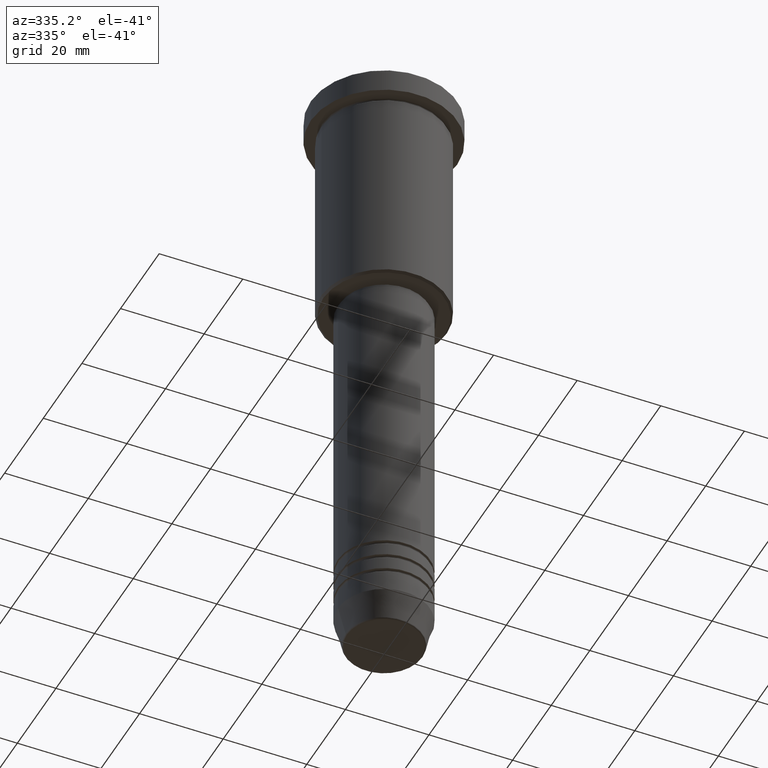
[diagram: clean part render]
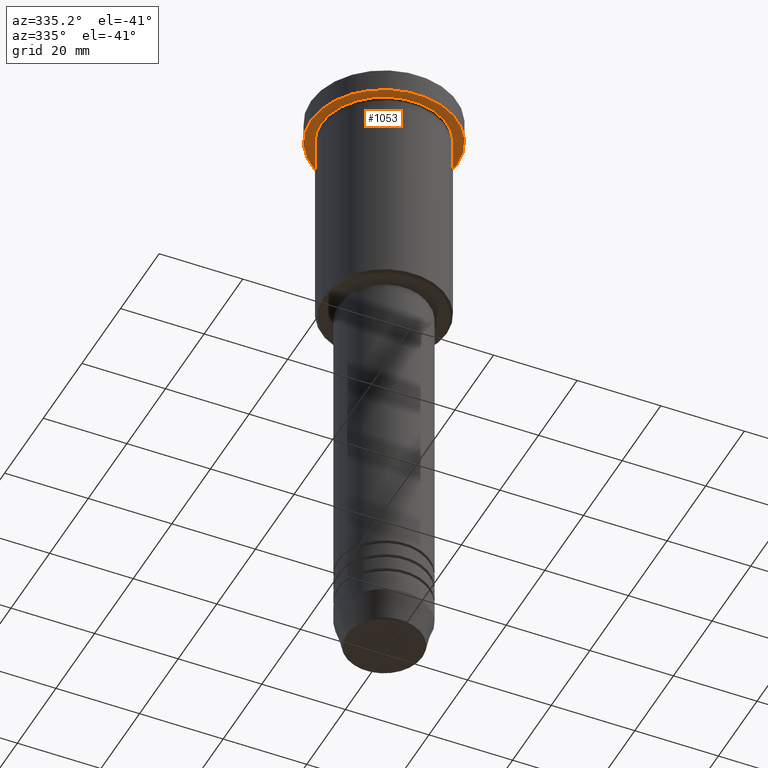
[diagram: same view with one face highlighted and labeled with its STEP entity id]
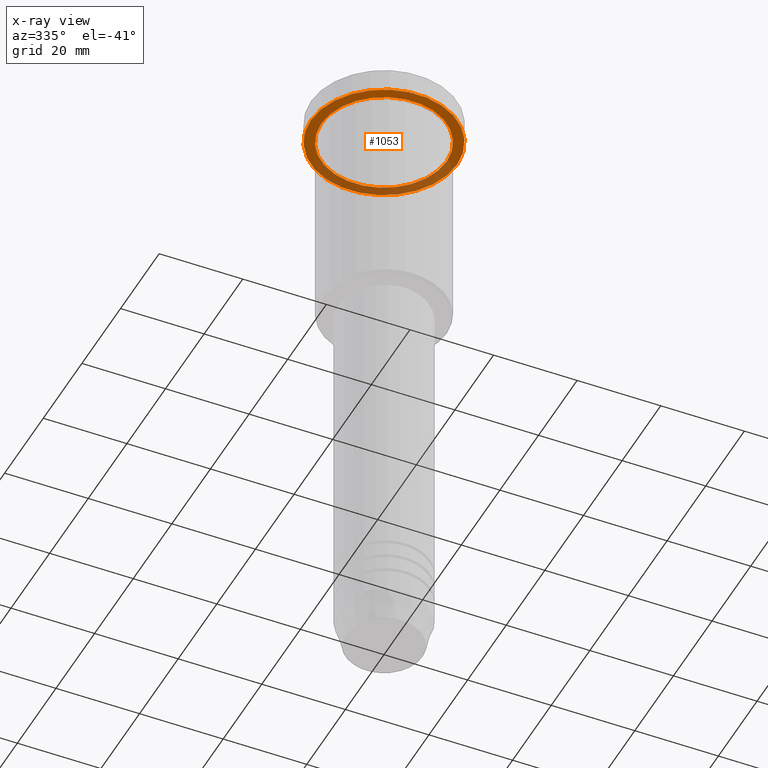
[diagram: x-ray of the same camera — body ghosted, the highlighted face saturated]
A machine part, auxiliary view. The second image highlights one B-rep face of the part: STEP entity #1053.
The next image is the same camera in x-ray: the body ghosted, the highlighted face saturated — about 35% of this face is hidden behind the body in this view.
In plain terms, the highlighted planar face has unit normal (0, 0, -1).
Its self-contained STEP definition (entity closure, byte-faithful):
#2 = DIRECTION ( 'NONE',  ( -1.000000000000000000, 0.000000000000000000, 0.000000000000000000 ) ) ;
#16 = CARTESIAN_POINT ( 'NONE',  ( 0.000000000000000000, 0.000000000000000000, -5.999999999999995559 ) ) ;
#76 = VERTEX_POINT ( 'NONE', #393 ) ;
#80 = CARTESIAN_POINT ( 'NONE',  ( 0.000000000000000000, 17.50000000000000000, -5.999999999999995559 ) ) ;
#118 = EDGE_CURVE ( 'NONE', #76, #589, #730, .T. ) ;
#163 = AXIS2_PLACEMENT_3D ( 'NONE', #338, #438, #2 ) ;
#237 = AXIS2_PLACEMENT_3D ( 'NONE', #539, #709, #802 ) ;
#244 = AXIS2_PLACEMENT_3D ( 'NONE', #540, #1172, #459 ) ;
#255 = DIRECTION ( 'NONE',  ( -1.000000000000000000, 0.000000000000000000, -0.000000000000000000 ) ) ;
#282 = CIRCLE ( 'NONE', #244, 17.50000000000000000 ) ;
#338 = CARTESIAN_POINT ( 'NONE',  ( 0.000000000000000000, 0.000000000000000000, -5.999999999999995559 ) ) ;
#393 = CARTESIAN_POINT ( 'NONE',  ( -15.00000000000000000, 0.000000000000000000, -5.999999999999994671 ) ) ;
#400 = DIRECTION ( 'NONE',  ( -0.000000000000000000, -0.000000000000000000, 1.000000000000000000 ) ) ;
#420 = AXIS2_PLACEMENT_3D ( 'NONE', #80, #1175, #255 ) ;
#438 = DIRECTION ( 'NONE',  ( -0.000000000000000000, -0.000000000000000000, 1.000000000000000000 ) ) ;
#444 = CARTESIAN_POINT ( 'NONE',  ( -17.50000000000000000, 2.143131898507868248E-15, -5.999999999999995559 ) ) ;
#446 = AXIS2_PLACEMENT_3D ( 'NONE', #16, #400, #1133 ) ;
#459 = DIRECTION ( 'NONE',  ( 1.000000000000000000, 0.000000000000000000, 0.000000000000000000 ) ) ;
#470 = FACE_BOUND ( 'NONE', #771, .T. ) ;
#482 = CIRCLE ( 'NONE', #163, 15.00000000000000000 ) ;
#504 = ORIENTED_EDGE ( 'NONE', *, *, #1159, .F. ) ;
#539 = CARTESIAN_POINT ( 'NONE',  ( 0.000000000000000000, 0.000000000000000000, -5.999999999999995559 ) ) ;
#540 = CARTESIAN_POINT ( 'NONE',  ( 0.000000000000000000, 0.000000000000000000, -5.999999999999995559 ) ) ;
#544 = VERTEX_POINT ( 'NONE', #444 ) ;
#589 = VERTEX_POINT ( 'NONE', #1036 ) ;
#599 = ORIENTED_EDGE ( 'NONE', *, *, #118, .T. ) ;
#628 = EDGE_LOOP ( 'NONE', ( #504, #934 ) ) ;
#665 = CIRCLE ( 'NONE', #237, 17.50000000000000000 ) ;
#677 = VERTEX_POINT ( 'NONE', #989 ) ;
#690 = EDGE_CURVE ( 'NONE', #544, #677, #665, .T. ) ;
#709 = DIRECTION ( 'NONE',  ( -0.000000000000000000, -0.000000000000000000, 1.000000000000000000 ) ) ;
#726 = ORIENTED_EDGE ( 'NONE', *, *, #846, .T. ) ;
#730 = CIRCLE ( 'NONE', #446, 15.00000000000000000 ) ;
#771 = EDGE_LOOP ( 'NONE', ( #599, #726 ) ) ;
#802 = DIRECTION ( 'NONE',  ( 1.000000000000000000, 0.000000000000000000, 0.000000000000000000 ) ) ;
#820 = FACE_OUTER_BOUND ( 'NONE', #628, .T. ) ;
#846 = EDGE_CURVE ( 'NONE', #589, #76, #482, .T. ) ;
#894 = PLANE ( 'NONE',  #420 ) ;
#934 = ORIENTED_EDGE ( 'NONE', *, *, #690, .F. ) ;
#989 = CARTESIAN_POINT ( 'NONE',  ( 17.50000000000000000, 0.000000000000000000, -5.999999999999995559 ) ) ;
#1036 = CARTESIAN_POINT ( 'NONE',  ( 15.00000000000000000, 1.836970198721029589E-15, -5.999999999999994671 ) ) ;
#1053 = ADVANCED_FACE ( 'NONE', ( #470, #820 ), #894, .T. ) ;
#1133 = DIRECTION ( 'NONE',  ( -1.000000000000000000, 0.000000000000000000, 0.000000000000000000 ) ) ;
#1159 = EDGE_CURVE ( 'NONE', #677, #544, #282, .T. ) ;
#1172 = DIRECTION ( 'NONE',  ( -0.000000000000000000, -0.000000000000000000, 1.000000000000000000 ) ) ;
#1175 = DIRECTION ( 'NONE',  ( 0.000000000000000000, 0.000000000000000000, -1.000000000000000000 ) ) ;